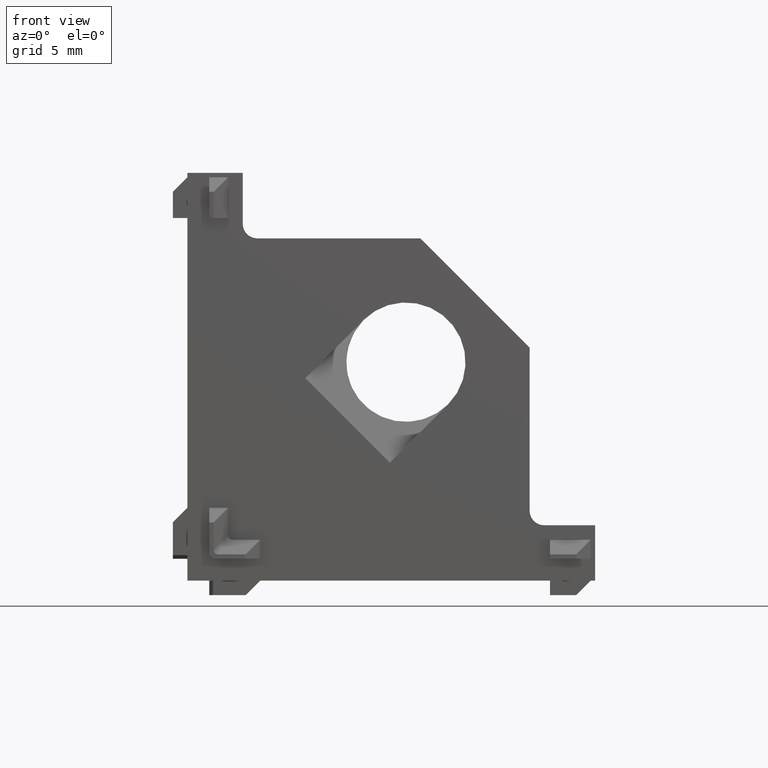
[diagram: clean part render]
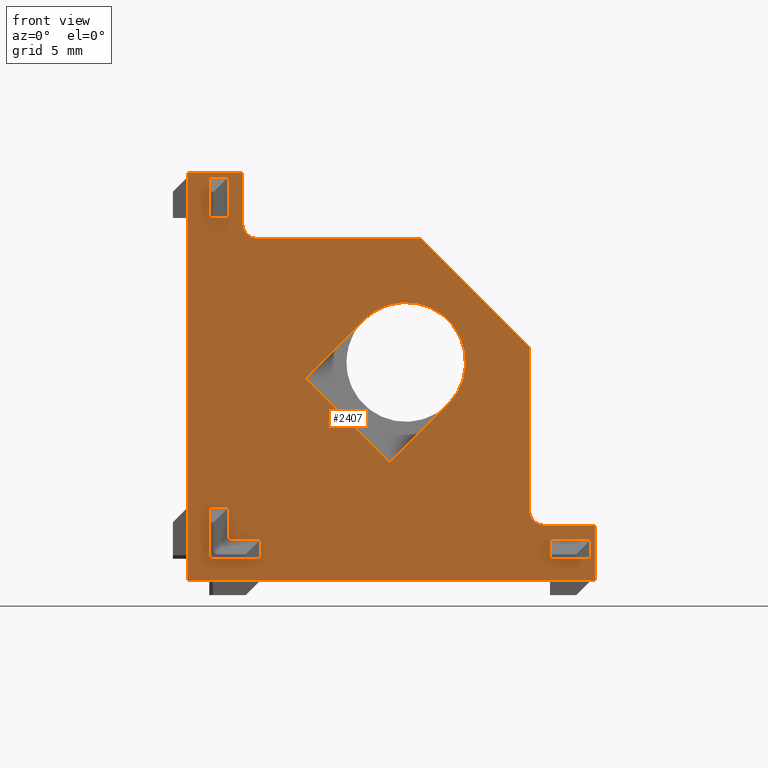
[diagram: same view with one face highlighted and labeled with its STEP entity id]
A machine part, front view. The second image highlights one B-rep face of the part: STEP entity #2407.
In plain terms, the highlighted planar face has unit normal (0, 1, 0).
Its self-contained STEP definition (entity closure, byte-faithful):
#33=FACE_BOUND('',#354,.T.);
#34=FACE_BOUND('',#355,.T.);
#35=FACE_BOUND('',#356,.T.);
#36=FACE_BOUND('',#357,.T.);
#52=PLANE('',#2586);
#159=ELLIPSE('',#2589,0.866025403783617,0.499999999999759);
#209=FACE_OUTER_BOUND('',#353,.T.);
#353=EDGE_LOOP('',(#1719,#1720,#1721,#1722,#1723,#1724,#1725,#1726,#1727,
#1728,#1729));
#354=EDGE_LOOP('',(#1730,#1731,#1732,#1733));
#355=EDGE_LOOP('',(#1734,#1735,#1736,#1737));
#356=EDGE_LOOP('',(#1738,#1739,#1740,#1741));
#357=EDGE_LOOP('',(#1742,#1743,#1744,#1745,#1746,#1747,#1748,#1749));
#517=CIRCLE('',#2584,4.1);
#519=CIRCLE('',#2587,1.);
#520=CIRCLE('',#2588,1.);
#580=LINE('',#3550,#852);
#581=LINE('',#3552,#853);
#582=LINE('',#3554,#854);
#583=LINE('',#3558,#855);
#584=LINE('',#3560,#856);
#585=LINE('',#3562,#857);
#586=LINE('',#3564,#858);
#587=LINE('',#3566,#859);
#588=LINE('',#3568,#860);
#589=LINE('',#3572,#861);
#590=LINE('',#3574,#862);
#591=LINE('',#3576,#863);
#592=LINE('',#3577,#864);
#593=LINE('',#3579,#865);
#594=LINE('',#3581,#866);
#595=LINE('',#3582,#867);
#596=LINE('',#3585,#868);
#597=LINE('',#3587,#869);
#598=LINE('',#3589,#870);
#599=LINE('',#3590,#871);
#600=LINE('',#3593,#872);
#601=LINE('',#3597,#873);
#602=LINE('',#3599,#874);
#603=LINE('',#3601,#875);
#604=LINE('',#3603,#876);
#605=LINE('',#3605,#877);
#606=LINE('',#3606,#878);
#852=VECTOR('',#2832,1000.);
#853=VECTOR('',#2833,1000.);
#854=VECTOR('',#2834,1000.);
#855=VECTOR('',#2837,1000.);
#856=VECTOR('',#2838,1000.);
#857=VECTOR('',#2839,1000.);
#858=VECTOR('',#2840,1000.);
#859=VECTOR('',#2841,1000.);
#860=VECTOR('',#2842,1000.);
#861=VECTOR('',#2845,1000.);
#862=VECTOR('',#2846,1000.);
#863=VECTOR('',#2847,1000.);
#864=VECTOR('',#2848,1000.);
#865=VECTOR('',#2849,1000.);
#866=VECTOR('',#2850,1000.);
#867=VECTOR('',#2851,1000.);
#868=VECTOR('',#2852,1000.);
#869=VECTOR('',#2853,1000.);
#870=VECTOR('',#2854,1000.);
#871=VECTOR('',#2855,1000.);
#872=VECTOR('',#2856,1000.);
#873=VECTOR('',#2859,1000.);
#874=VECTOR('',#2860,1000.);
#875=VECTOR('',#2861,1000.);
#876=VECTOR('',#2862,1000.);
#877=VECTOR('',#2863,1000.);
#878=VECTOR('',#2864,1000.);
#1128=VERTEX_POINT('',#3539);
#1129=VERTEX_POINT('',#3540);
#1132=VERTEX_POINT('',#3548);
#1133=VERTEX_POINT('',#3549);
#1134=VERTEX_POINT('',#3551);
#1135=VERTEX_POINT('',#3553);
#1136=VERTEX_POINT('',#3555);
#1137=VERTEX_POINT('',#3557);
#1138=VERTEX_POINT('',#3559);
#1139=VERTEX_POINT('',#3561);
#1140=VERTEX_POINT('',#3563);
#1141=VERTEX_POINT('',#3565);
#1142=VERTEX_POINT('',#3567);
#1143=VERTEX_POINT('',#3570);
#1144=VERTEX_POINT('',#3571);
#1145=VERTEX_POINT('',#3573);
#1146=VERTEX_POINT('',#3575);
#1147=VERTEX_POINT('',#3578);
#1148=VERTEX_POINT('',#3580);
#1149=VERTEX_POINT('',#3583);
#1150=VERTEX_POINT('',#3584);
#1151=VERTEX_POINT('',#3586);
#1152=VERTEX_POINT('',#3588);
#1153=VERTEX_POINT('',#3591);
#1154=VERTEX_POINT('',#3592);
#1155=VERTEX_POINT('',#3594);
#1156=VERTEX_POINT('',#3596);
#1157=VERTEX_POINT('',#3598);
#1158=VERTEX_POINT('',#3600);
#1159=VERTEX_POINT('',#3602);
#1160=VERTEX_POINT('',#3604);
#1362=EDGE_CURVE('',#1128,#1129,#517,.T.);
#1366=EDGE_CURVE('',#1132,#1133,#580,.T.);
#1367=EDGE_CURVE('',#1132,#1134,#581,.T.);
#1368=EDGE_CURVE('',#1135,#1134,#582,.T.);
#1369=EDGE_CURVE('',#1135,#1136,#519,.T.);
#1370=EDGE_CURVE('',#1136,#1137,#583,.T.);
#1371=EDGE_CURVE('',#1138,#1137,#584,.T.);
#1372=EDGE_CURVE('',#1138,#1139,#585,.T.);
#1373=EDGE_CURVE('',#1139,#1140,#586,.T.);
#1374=EDGE_CURVE('',#1141,#1140,#587,.T.);
#1375=EDGE_CURVE('',#1142,#1141,#588,.T.);
#1376=EDGE_CURVE('',#1142,#1133,#520,.T.);
#1377=EDGE_CURVE('',#1143,#1144,#589,.T.);
#1378=EDGE_CURVE('',#1145,#1143,#590,.T.);
#1379=EDGE_CURVE('',#1146,#1145,#591,.T.);
#1380=EDGE_CURVE('',#1144,#1146,#592,.T.);
#1381=EDGE_CURVE('',#1128,#1147,#593,.T.);
#1382=EDGE_CURVE('',#1129,#1148,#594,.T.);
#1383=EDGE_CURVE('',#1148,#1147,#595,.T.);
#1384=EDGE_CURVE('',#1149,#1150,#596,.T.);
#1385=EDGE_CURVE('',#1151,#1149,#597,.T.);
#1386=EDGE_CURVE('',#1152,#1151,#598,.T.);
#1387=EDGE_CURVE('',#1150,#1152,#599,.T.);
#1388=EDGE_CURVE('',#1153,#1154,#600,.T.);
#1389=EDGE_CURVE('',#1153,#1155,#159,.T.);
#1390=EDGE_CURVE('',#1156,#1155,#601,.T.);
#1391=EDGE_CURVE('',#1157,#1156,#602,.T.);
#1392=EDGE_CURVE('',#1158,#1157,#603,.T.);
#1393=EDGE_CURVE('',#1159,#1158,#604,.T.);
#1394=EDGE_CURVE('',#1160,#1159,#605,.T.);
#1395=EDGE_CURVE('',#1154,#1160,#606,.T.);
#1719=ORIENTED_EDGE('',*,*,#1366,.F.);
#1720=ORIENTED_EDGE('',*,*,#1367,.T.);
#1721=ORIENTED_EDGE('',*,*,#1368,.F.);
#1722=ORIENTED_EDGE('',*,*,#1369,.T.);
#1723=ORIENTED_EDGE('',*,*,#1370,.T.);
#1724=ORIENTED_EDGE('',*,*,#1371,.F.);
#1725=ORIENTED_EDGE('',*,*,#1372,.T.);
#1726=ORIENTED_EDGE('',*,*,#1373,.T.);
#1727=ORIENTED_EDGE('',*,*,#1374,.F.);
#1728=ORIENTED_EDGE('',*,*,#1375,.F.);
#1729=ORIENTED_EDGE('',*,*,#1376,.T.);
#1730=ORIENTED_EDGE('',*,*,#1377,.F.);
#1731=ORIENTED_EDGE('',*,*,#1378,.F.);
#1732=ORIENTED_EDGE('',*,*,#1379,.F.);
#1733=ORIENTED_EDGE('',*,*,#1380,.F.);
#1734=ORIENTED_EDGE('',*,*,#1381,.F.);
#1735=ORIENTED_EDGE('',*,*,#1362,.T.);
#1736=ORIENTED_EDGE('',*,*,#1382,.T.);
#1737=ORIENTED_EDGE('',*,*,#1383,.T.);
#1738=ORIENTED_EDGE('',*,*,#1384,.F.);
#1739=ORIENTED_EDGE('',*,*,#1385,.F.);
#1740=ORIENTED_EDGE('',*,*,#1386,.F.);
#1741=ORIENTED_EDGE('',*,*,#1387,.F.);
#1742=ORIENTED_EDGE('',*,*,#1388,.F.);
#1743=ORIENTED_EDGE('',*,*,#1389,.T.);
#1744=ORIENTED_EDGE('',*,*,#1390,.F.);
#1745=ORIENTED_EDGE('',*,*,#1391,.F.);
#1746=ORIENTED_EDGE('',*,*,#1392,.F.);
#1747=ORIENTED_EDGE('',*,*,#1393,.F.);
#1748=ORIENTED_EDGE('',*,*,#1394,.F.);
#1749=ORIENTED_EDGE('',*,*,#1395,.F.);
#2407=ADVANCED_FACE('',(#209,#33,#34,#35,#36),#52,.F.);
#2584=AXIS2_PLACEMENT_3D('',#3541,#2824,#2825);
#2586=AXIS2_PLACEMENT_3D('',#3547,#2830,#2831);
#2587=AXIS2_PLACEMENT_3D('',#3556,#2835,#2836);
#2588=AXIS2_PLACEMENT_3D('',#3569,#2843,#2844);
#2589=AXIS2_PLACEMENT_3D('',#3595,#2857,#2858);
#2824=DIRECTION('center_axis',(0.,1.,0.));
#2825=DIRECTION('ref_axis',(0.,0.,1.));
#2830=DIRECTION('center_axis',(0.,1.,0.));
#2831=DIRECTION('ref_axis',(0.,0.,1.));
#2832=DIRECTION('',(0.,0.,-1.));
#2833=DIRECTION('',(-0.707106781186549,0.,0.707106781186546));
#2834=DIRECTION('',(1.,0.,0.));
#2835=DIRECTION('center_axis',(0.,1.,0.));
#2836=DIRECTION('ref_axis',(0.,0.,1.));
#2837=DIRECTION('',(0.,0.,1.));
#2838=DIRECTION('',(1.,0.,0.));
#2839=DIRECTION('',(0.,0.,-1.));
#2840=DIRECTION('',(1.,0.,0.));
#2841=DIRECTION('',(0.,0.,-1.));
#2842=DIRECTION('',(1.,0.,0.));
#2843=DIRECTION('center_axis',(0.,1.,0.));
#2844=DIRECTION('ref_axis',(0.,0.,1.));
#2845=DIRECTION('',(-6.19544098563145E-16,0.,-1.));
#2846=DIRECTION('',(-1.,0.,0.));
#2847=DIRECTION('',(0.,0.,1.));
#2848=DIRECTION('',(1.,0.,0.));
#2849=DIRECTION('',(-0.707106781186547,0.,-0.707106781186548));
#2850=DIRECTION('',(-0.707106781186545,0.,-0.70710678118655));
#2851=DIRECTION('',(-0.707106781186548,0.,0.707106781186547));
#2852=DIRECTION('',(0.,0.,-1.));
#2853=DIRECTION('',(-1.,0.,0.));
#2854=DIRECTION('',(0.,0.,1.));
#2855=DIRECTION('',(1.,0.,0.));
#2856=DIRECTION('',(0.,0.,1.));
#2857=DIRECTION('center_axis',(-1.35323162641241E-14,-1.,-1.3532316264124E-14));
#2858=DIRECTION('ref_axis',(-0.707106781186547,1.91375851910462E-14,-0.707106781186547));
#2859=DIRECTION('',(-1.,0.,0.));
#2860=DIRECTION('',(-1.33440267382832E-15,0.,1.));
#2861=DIRECTION('',(1.,0.,5.33761069531325E-16));
#2862=DIRECTION('',(0.70710678118655,0.,-0.707106781186545));
#2863=DIRECTION('',(-5.33761069531325E-16,0.,-1.));
#2864=DIRECTION('',(-1.,0.,0.));
#3539=CARTESIAN_POINT('',(-1.89913780286485,-14.,3.89913780286484));
#3540=CARTESIAN_POINT('',(3.89913780286484,-14.,-1.89913780286484));
#3541=CARTESIAN_POINT('Origin',(0.999999999999999,-14.,0.999999999999999));
#3547=CARTESIAN_POINT('Origin',(-14.,-14.,14.));
#3548=CARTESIAN_POINT('',(9.5,-14.,2.));
#3549=CARTESIAN_POINT('',(9.5,-14.,-9.2));
#3550=CARTESIAN_POINT('',(9.5,-14.,0.));
#3551=CARTESIAN_POINT('',(1.99999999999997,-14.,9.5));
#3552=CARTESIAN_POINT('',(9.5,-14.,2.));
#3553=CARTESIAN_POINT('',(-9.2,-14.,9.5));
#3554=CARTESIAN_POINT('',(0.,-14.,9.5));
#3555=CARTESIAN_POINT('',(-10.2,-14.,10.5));
#3556=CARTESIAN_POINT('Origin',(-9.2,-14.,10.5));
#3557=CARTESIAN_POINT('',(-10.2,-14.,14.));
#3558=CARTESIAN_POINT('',(-10.2,-14.,9.5));
#3559=CARTESIAN_POINT('',(-14.,-14.,14.));
#3560=CARTESIAN_POINT('',(-14.,-14.,14.));
#3561=CARTESIAN_POINT('',(-14.,-14.,-14.));
#3562=CARTESIAN_POINT('',(-14.,-14.,14.));
#3563=CARTESIAN_POINT('',(14.,-14.,-14.));
#3564=CARTESIAN_POINT('',(-14.,-14.,-14.));
#3565=CARTESIAN_POINT('',(14.,-14.,-10.2));
#3566=CARTESIAN_POINT('',(14.,-14.,14.));
#3567=CARTESIAN_POINT('',(10.5,-14.,-10.2));
#3568=CARTESIAN_POINT('',(9.5,-14.,-10.2));
#3569=CARTESIAN_POINT('Origin',(10.5,-14.,-9.2));
#3570=CARTESIAN_POINT('',(-12.5,-14.,13.7));
#3571=CARTESIAN_POINT('',(-12.5,-14.,10.9));
#3572=CARTESIAN_POINT('',(-12.5,-14.,13.7));
#3573=CARTESIAN_POINT('',(-11.2,-14.,13.7));
#3574=CARTESIAN_POINT('',(-12.5,-14.,13.7));
#3575=CARTESIAN_POINT('',(-11.2,-14.,10.9));
#3576=CARTESIAN_POINT('',(-11.2,-14.,13.7));
#3577=CARTESIAN_POINT('',(-12.5,-14.,10.9));
#3578=CARTESIAN_POINT('',(-5.90054598998212,-14.,-0.102270384252429));
#3579=CARTESIAN_POINT('',(-2.89913780286483,-14.,2.89913780286485));
#3580=CARTESIAN_POINT('',(-0.102270384252432,-14.,-5.90054598998212));
#3581=CARTESIAN_POINT('',(2.89913780286489,-14.,-2.89913780286477));
#3582=CARTESIAN_POINT('',(-17.0014081871173,-14.,10.9985918128827));
#3583=CARTESIAN_POINT('',(10.9,-14.,-11.2));
#3584=CARTESIAN_POINT('',(10.9,-14.,-12.5));
#3585=CARTESIAN_POINT('',(10.9,-14.,-12.5));
#3586=CARTESIAN_POINT('',(13.7,-14.,-11.2));
#3587=CARTESIAN_POINT('',(10.9,-14.,-11.2));
#3588=CARTESIAN_POINT('',(13.7,-14.,-12.5));
#3589=CARTESIAN_POINT('',(13.7,-14.,-12.5));
#3590=CARTESIAN_POINT('',(10.9,-14.,-12.5));
#3591=CARTESIAN_POINT('',(-11.2,-14.,-10.8464466094067));
#3592=CARTESIAN_POINT('',(-11.2,-14.,-9.));
#3593=CARTESIAN_POINT('',(-11.2,-14.,-9.));
#3594=CARTESIAN_POINT('',(-10.8464466094067,-14.,-11.2));
#3595=CARTESIAN_POINT('Origin',(-10.492893218814,-14.,-10.492893218814));
#3596=CARTESIAN_POINT('',(-9.,-14.,-11.2));
#3597=CARTESIAN_POINT('',(-11.2,-14.,-11.2));
#3598=CARTESIAN_POINT('',(-9.,-14.,-12.5));
#3599=CARTESIAN_POINT('',(-9.,-14.,-11.2));
#3600=CARTESIAN_POINT('',(-12.25,-14.,-12.5));
#3601=CARTESIAN_POINT('',(-12.25,-14.,-12.5));
#3602=CARTESIAN_POINT('',(-12.5,-14.,-12.25));
#3603=CARTESIAN_POINT('',(-12.5,-14.,-12.25));
#3604=CARTESIAN_POINT('',(-12.5,-14.,-9.));
#3605=CARTESIAN_POINT('',(-12.5,-14.,-9.));
#3606=CARTESIAN_POINT('',(-12.5,-14.,-9.));